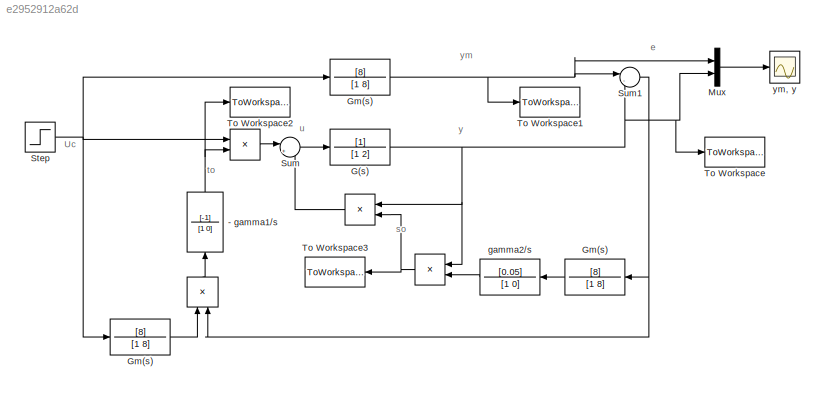
MODEL slx_e2952912a62d
KIND model
BLOCK [Product]  
  InputSameDT = off
  OutDataTypeStr = Inherit: Inherit via internal rule
  Ports = [2, 1]
  RndMeth = Floor
  SaturateOnIntegerOverflow = off
BLOCK [Product]   
  InputSameDT = off
  OutDataTypeStr = Inherit: Inherit via internal rule
  Ports = [2, 1]
  RndMeth = Floor
  SaturateOnIntegerOverflow = off
BLOCK [Product]    
  InputSameDT = off
  OutDataTypeStr = Inherit: Inherit via internal rule
  Ports = [2, 1]
  RndMeth = Floor
  SaturateOnIntegerOverflow = off
BLOCK [TransferFcn] - gamma1//s
  Denominator = [1 0]
  Numerator = [-1]
BLOCK [TransferFcn] G(s)
  Denominator = [1 2]
BLOCK [TransferFcn] Gm(s)
  Denominator = [1 8]
  Numerator = [8]
BLOCK [TransferFcn] Gm(s)  
  Denominator = [1 8]
  Numerator = [8]
BLOCK [TransferFcn] Gm(s)   
  Denominator = [1 8]
  Numerator = [8]
BLOCK [Mux] Mux
  DisplayOption = bar
  Inputs = 2
  Ports = [2, 1]
BLOCK [Step] Step
  SampleTime = 0
  Time = 0
BLOCK [Sum] Sum
  IconShape = round
  InputSameDT = off
  Inputs = |+-
  OutDataTypeStr = Inherit: Inherit via internal rule
  Ports = [2, 1]
  SaturateOnIntegerOverflow = off
BLOCK [Sum] Sum1
  IconShape = round
  InputSameDT = off
  Inputs = |-+
  OutDataTypeStr = Inherit: Inherit via internal rule
  Ports = [2, 1]
  SaturateOnIntegerOverflow = off
BLOCK [ToWorkspace] To Workspace
  MaxDataPoints = inf
  Ports = [1]
  SampleTime = -1
  VariableName = y
BLOCK [ToWorkspace] To Workspace1
  MaxDataPoints = inf
  Ports = [1]
  SampleTime = -1
  VariableName = ym
BLOCK [ToWorkspace] To Workspace2
  MaxDataPoints = inf
  Ports = [1]
  SampleTime = -1
  VariableName = to
BLOCK [ToWorkspace] To Workspace3
  MaxDataPoints = inf
  Ports = [1]
  SampleTime = -1
  VariableName = so
BLOCK [TransferFcn] gamma2//s
  Denominator = [1 0]
  Numerator = [0.05]
BLOCK [Scope] ym, y 
  DataFormat = StructureWithTime
  Floating = off
  NumInputPorts = 1
  Ports = [1]
  SampleTime = 0
  ShowLegends = off
ANNOTATION (root): Uc
ANNOTATION (root): e
ANNOTATION (root): so
ANNOTATION (root): to
ANNOTATION (root): u
ANNOTATION (root): y
ANNOTATION (root): ym
LINE    :1 -> Sum:1
LINE   :1 -> Sum:2
NET  :1 ->   :2, - gamma1//s:1, To Workspace3:1
NET - gamma1//s:1 ->    :2, To Workspace2:1
NET G(s):1 ->   :1,  :1, Mux:2, Sum1:2, To Workspace:1
LINE Gm(s)   :1 -> gamma2//s:1
LINE Gm(s)  :1 ->  :1
NET Gm(s):1 -> Mux:1, Sum1:1, To Workspace1:1
LINE Mux:1 -> ym, y :1
NET Step:1 ->    :1, Gm(s)  :1, Gm(s):1
NET Sum1:1 ->  :2, Gm(s)   :1
LINE Sum:1 -> G(s):1
LINE gamma2//s:1 ->  :2
note: NET lines group one-source signal fan-out (src -> all destinations, sorted); 1:1 wires keep LINE
